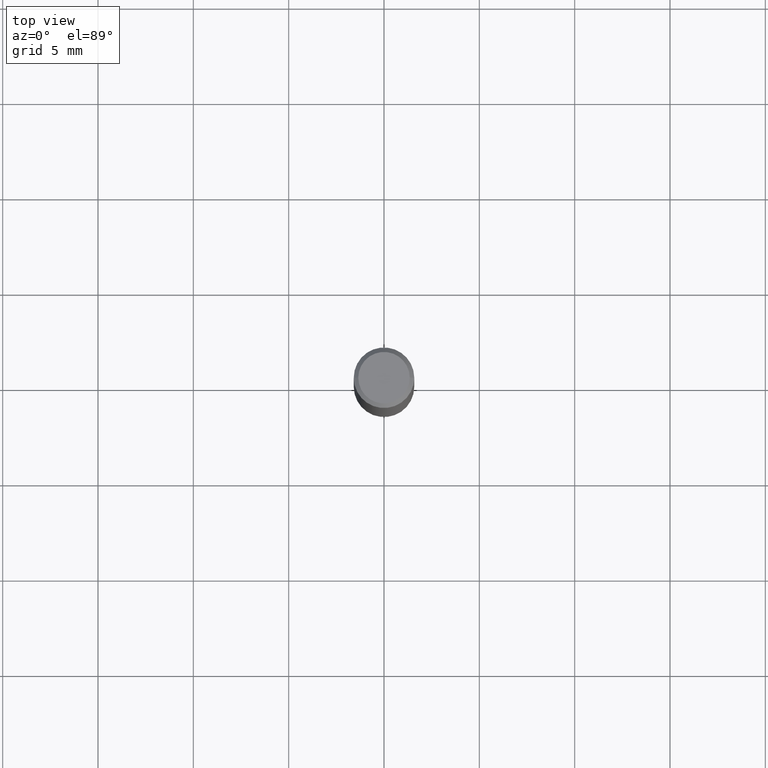
[diagram: clean part render]
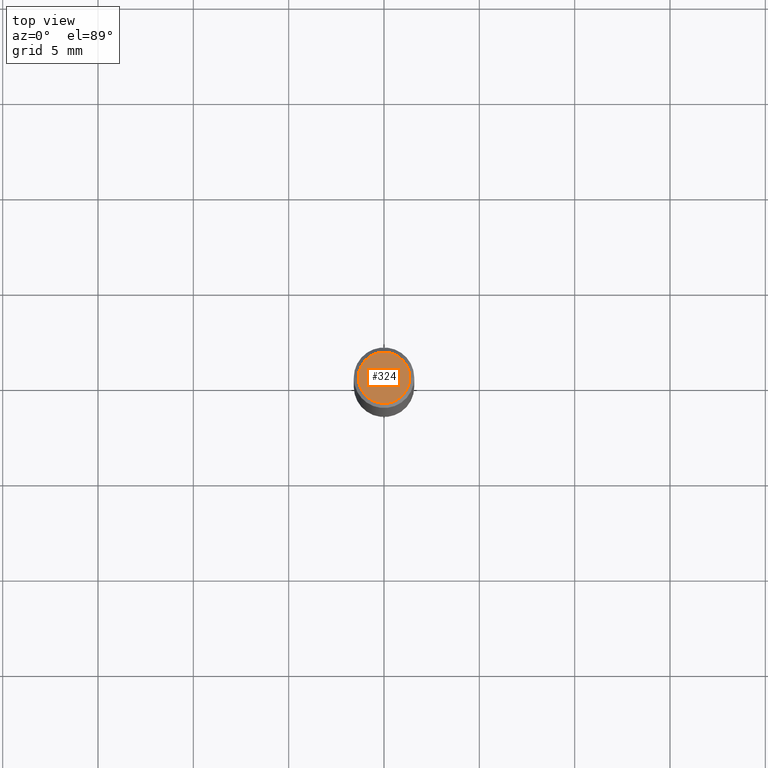
[diagram: same view with one face highlighted and labeled with its STEP entity id]
A machine part, top view. The second image highlights one B-rep face of the part: STEP entity #324.
In plain terms, the highlighted planar face has unit normal (0, -0, -1).
Its self-contained STEP definition (entity closure, byte-faithful):
#1 = CARTESIAN_POINT ( 'NONE',  ( 1.415359278996747967E-46, -2.020757941330909984E-32, -5.787680772770392401E-18 ) ) ;
#3 = DIRECTION ( 'NONE',  ( 1.000000000000000000, -6.982962677686266711E-15, 4.875930095424100059E-29 ) ) ;
#90 = AXIS2_PLACEMENT_3D ( 'NONE', #1, #182, #365 ) ;
#91 = ORIENTED_EDGE ( 'NONE', *, *, #274, .T. ) ;
#102 = DIRECTION ( 'NONE',  ( 2.438088387897960049E-29, -3.491481338843145188E-15, -1.000000000000000000 ) ) ;
#165 = EDGE_LOOP ( 'NONE', ( #91, #364 ) ) ;
#180 = CARTESIAN_POINT ( 'NONE',  ( 1.415359278996747967E-46, -2.020757941330909984E-32, -5.787680772770392401E-18 ) ) ;
#182 = DIRECTION ( 'NONE',  ( -2.445468806185136597E-29, 3.491481338843145583E-15, 1.000000000000000000 ) ) ;
#183 = FACE_OUTER_BOUND ( 'NONE', #165, .T. ) ;
#216 = EDGE_CURVE ( 'NONE', #429, #234, #345, .T. ) ;
#226 = CARTESIAN_POINT ( 'NONE',  ( 0.05312499999999999861, -4.129888592719939842E-16, -5.787680772767651417E-18 ) ) ;
#234 = VERTEX_POINT ( 'NONE', #322 ) ;
#274 = EDGE_CURVE ( 'NONE', #234, #429, #578, .T. ) ;
#322 = CARTESIAN_POINT ( 'NONE',  ( -0.05312499999999999861, 3.873362110279099094E-16, -5.787680772773044021E-18 ) ) ;
#324 = ADVANCED_FACE ( 'NONE', ( #183 ), #507, .F. ) ;
#325 = DIRECTION ( 'NONE',  ( -1.000000000000000000, 6.982962677686265922E-15, -4.876176775795935793E-29 ) ) ;
#327 = DIRECTION ( 'NONE',  ( -2.445468806185136597E-29, 3.491481338843145583E-15, 1.000000000000000000 ) ) ;
#345 = CIRCLE ( 'NONE', #90, 0.05312499999999999861 ) ;
#364 = ORIENTED_EDGE ( 'NONE', *, *, #216, .T. ) ;
#365 = DIRECTION ( 'NONE',  ( 1.000000000000000000, -6.982962677686266711E-15, 4.875930095424100059E-29 ) ) ;
#367 = AXIS2_PLACEMENT_3D ( 'NONE', #180, #327, #3 ) ;
#429 = VERTEX_POINT ( 'NONE', #226 ) ;
#478 = AXIS2_PLACEMENT_3D ( 'NONE', #586, #102, #325 ) ;
#507 = PLANE ( 'NONE',  #478 ) ;
#578 = CIRCLE ( 'NONE', #367, 0.05312499999999999861 ) ;
#586 = CARTESIAN_POINT ( 'NONE',  ( 7.076796394983739835E-47, -1.010378970665454992E-32, -2.893840386385196200E-18 ) ) ;